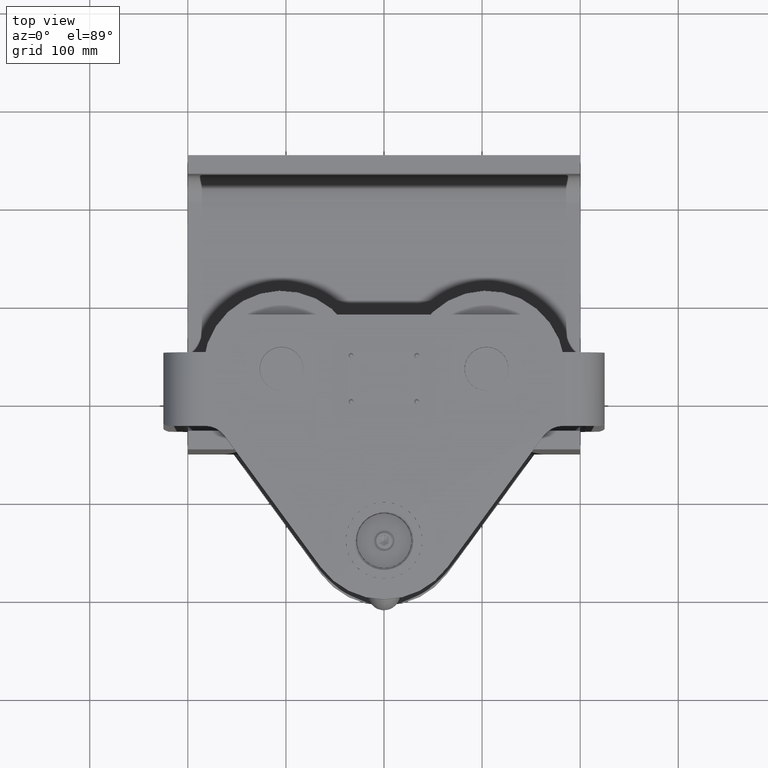
[diagram: clean part render]
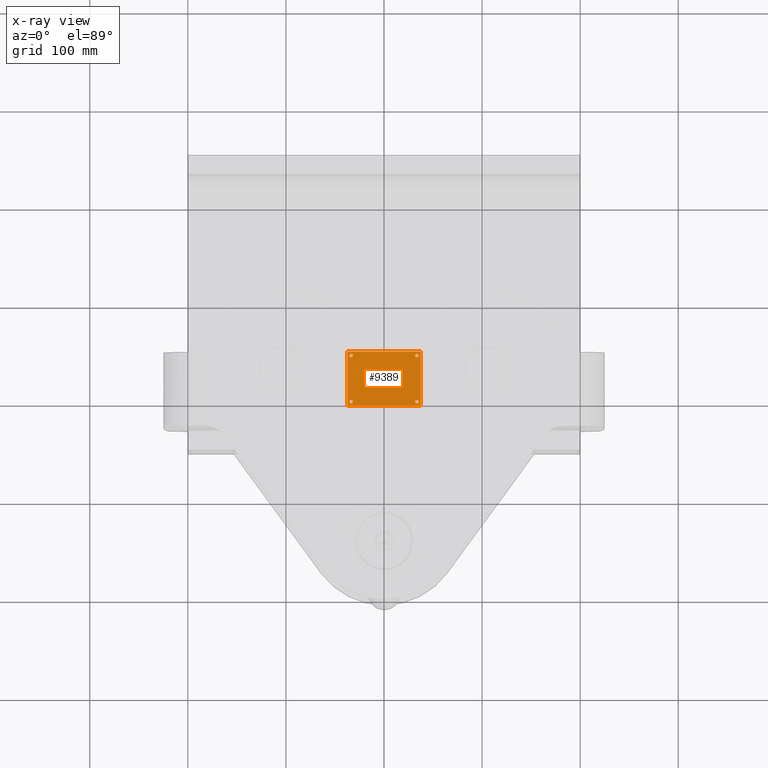
[diagram: x-ray — body ghosted, one internal face saturated and labeled with its STEP entity id]
A machine part, top view, then the same camera in x-ray: the body is ghosted and one INTERNAL B-rep face — a face not visible from any outside direction — is saturated and labeled: STEP entity #9389.
In plain terms, the highlighted planar face has unit normal (0, 0, -1).
Its self-contained STEP definition (entity closure, byte-faithful):
#891 = FACE_BOUND ( 'NONE', #1178, .T. ) ;
#1178 = EDGE_LOOP ( 'NONE', ( #51206, #14675 ) ) ;
#1287 = EDGE_CURVE ( 'NONE', #6962, #25222, #12472, .T. ) ;
#1322 = DIRECTION ( 'NONE',  ( 1.000000000000000000, 0.0000000000000000000, 0.0000000000000000000 ) ) ;
#1678 = CARTESIAN_POINT ( 'NONE',  ( -33.50000000000000700, -101.9999999999999900, 185.0000000000004300 ) ) ;
#1806 = EDGE_LOOP ( 'NONE', ( #3330, #35598 ) ) ;
#1951 = AXIS2_PLACEMENT_3D ( 'NONE', #42239, #26601, #34793 ) ;
#2257 = DIRECTION ( 'NONE',  ( 0.0000000000000000000, 1.000000000000000000, 0.0000000000000000000 ) ) ;
#3330 = ORIENTED_EDGE ( 'NONE', *, *, #8476, .T. ) ;
#3392 = DIRECTION ( 'NONE',  ( 1.000000000000000000, 0.0000000000000000000, 0.0000000000000000000 ) ) ;
#4411 = VERTEX_POINT ( 'NONE', #24875 ) ;
#4970 = DIRECTION ( 'NONE',  ( 1.000000000000000000, 0.0000000000000000000, 0.0000000000000000000 ) ) ;
#5223 = CARTESIAN_POINT ( 'NONE',  ( -33.50000000000000700, -54.99999999999997900, 185.0000000000004300 ) ) ;
#5318 = AXIS2_PLACEMENT_3D ( 'NONE', #36112, #15628, #3392 ) ;
#5394 = DIRECTION ( 'NONE',  ( 0.0000000000000000000, 0.0000000000000000000, 1.000000000000000000 ) ) ;
#5723 = CARTESIAN_POINT ( 'NONE',  ( -37.50000000000001400, -50.99999999999998600, 185.0000000000004300 ) ) ;
#5928 = CARTESIAN_POINT ( 'NONE',  ( -35.25000000000000700, -101.9999999999999900, 185.0000000000004300 ) ) ;
#5986 = CARTESIAN_POINT ( 'NONE',  ( -33.50000000000000700, -54.99999999999997900, 185.0000000000004300 ) ) ;
#5991 = VECTOR ( 'NONE', #22455, 1000.000000000000000 ) ;
#6962 = VERTEX_POINT ( 'NONE', #10570 ) ;
#7162 = EDGE_CURVE ( 'NONE', #17252, #14737, #28204, .T. ) ;
#7319 = EDGE_CURVE ( 'NONE', #25222, #4411, #30793, .T. ) ;
#7883 = AXIS2_PLACEMENT_3D ( 'NONE', #26074, #21554, #34614 ) ;
#7992 = VERTEX_POINT ( 'NONE', #5928 ) ;
#8169 = CIRCLE ( 'NONE', #1951, 1.749999999999994700 ) ;
#8476 = EDGE_CURVE ( 'NONE', #27762, #45319, #21814, .T. ) ;
#9389 = ADVANCED_FACE ( 'NONE', ( #43199, #891, #18308, #17000, #19564 ), #9815, .T. ) ;
#9494 = CARTESIAN_POINT ( 'NONE',  ( 31.75000000000000000, -101.9999999999999900, 185.0000000000004300 ) ) ;
#9815 = PLANE ( 'NONE',  #51075 ) ;
#10476 = CARTESIAN_POINT ( 'NONE',  ( 37.50000000000000000, -105.9999999999999900, 185.0000000000004300 ) ) ;
#10570 = CARTESIAN_POINT ( 'NONE',  ( 37.50000000000000000, -105.9999999999999900, 185.0000000000004300 ) ) ;
#12472 = LINE ( 'NONE', #10476, #34355 ) ;
#12615 = AXIS2_PLACEMENT_3D ( 'NONE', #5223, #5394, #41940 ) ;
#14451 = DIRECTION ( 'NONE',  ( 0.0000000000000000000, 0.0000000000000000000, 1.000000000000000000 ) ) ;
#14481 = AXIS2_PLACEMENT_3D ( 'NONE', #20836, #17256, #4970 ) ;
#14636 = LINE ( 'NONE', #19039, #37078 ) ;
#14675 = ORIENTED_EDGE ( 'NONE', *, *, #44038, .T. ) ;
#14737 = VERTEX_POINT ( 'NONE', #52064 ) ;
#14955 = ORIENTED_EDGE ( 'NONE', *, *, #50678, .F. ) ;
#14995 = ORIENTED_EDGE ( 'NONE', *, *, #48019, .F. ) ;
#15270 = EDGE_CURVE ( 'NONE', #41197, #30614, #8169, .T. ) ;
#15628 = DIRECTION ( 'NONE',  ( 0.0000000000000000000, 0.0000000000000000000, 1.000000000000000000 ) ) ;
#16196 = CARTESIAN_POINT ( 'NONE',  ( -37.50000000000001400, -105.9999999999999900, 185.0000000000004300 ) ) ;
#17000 = FACE_BOUND ( 'NONE', #17685, .T. ) ;
#17092 = ORIENTED_EDGE ( 'NONE', *, *, #1287, .F. ) ;
#17252 = VERTEX_POINT ( 'NONE', #19679 ) ;
#17256 = DIRECTION ( 'NONE',  ( 0.0000000000000000000, 0.0000000000000000000, 1.000000000000000000 ) ) ;
#17685 = EDGE_LOOP ( 'NONE', ( #24689, #25419 ) ) ;
#17757 = CIRCLE ( 'NONE', #31039, 1.750000000000001600 ) ;
#17912 = EDGE_CURVE ( 'NONE', #14737, #17252, #17757, .T. ) ;
#18308 = FACE_BOUND ( 'NONE', #44047, .T. ) ;
#19039 = CARTESIAN_POINT ( 'NONE',  ( -37.50000000000001400, -105.9999999999999900, 185.0000000000004300 ) ) ;
#19564 = FACE_OUTER_BOUND ( 'NONE', #43472, .T. ) ;
#19611 = CARTESIAN_POINT ( 'NONE',  ( -37.50000000000001400, -50.99999999999998600, 185.0000000000004300 ) ) ;
#19679 = CARTESIAN_POINT ( 'NONE',  ( -31.75000000000000700, -54.99999999999997900, 185.0000000000004300 ) ) ;
#20295 = EDGE_CURVE ( 'NONE', #52379, #7992, #26787, .T. ) ;
#20836 = CARTESIAN_POINT ( 'NONE',  ( 33.49999999999999300, -101.9999999999999900, 185.0000000000004300 ) ) ;
#21284 = CARTESIAN_POINT ( 'NONE',  ( 37.50000000000000000, -50.99999999999998600, 185.0000000000004300 ) ) ;
#21554 = DIRECTION ( 'NONE',  ( 0.0000000000000000000, 0.0000000000000000000, 1.000000000000000000 ) ) ;
#21814 = CIRCLE ( 'NONE', #14481, 1.749999999999994700 ) ;
#22214 = DIRECTION ( 'NONE',  ( 0.0000000000000000000, 0.0000000000000000000, 1.000000000000000000 ) ) ;
#22455 = DIRECTION ( 'NONE',  ( 1.000000000000000000, 0.0000000000000000000, 0.0000000000000000000 ) ) ;
#22787 = VERTEX_POINT ( 'NONE', #16196 ) ;
#23070 = DIRECTION ( 'NONE',  ( -1.000000000000000000, 0.0000000000000000000, -0.0000000000000000000 ) ) ;
#23773 = DIRECTION ( 'NONE',  ( -1.000000000000000000, -0.0000000000000000000, -0.0000000000000000000 ) ) ;
#23913 = DIRECTION ( 'NONE',  ( 0.0000000000000000000, 0.0000000000000000000, 1.000000000000000000 ) ) ;
#24689 = ORIENTED_EDGE ( 'NONE', *, *, #7162, .T. ) ;
#24875 = CARTESIAN_POINT ( 'NONE',  ( -37.50000000000001400, -50.99999999999998600, 185.0000000000004300 ) ) ;
#25155 = CARTESIAN_POINT ( 'NONE',  ( 31.75000000000000000, -54.99999999999997900, 185.0000000000004300 ) ) ;
#25222 = VERTEX_POINT ( 'NONE', #21284 ) ;
#25419 = ORIENTED_EDGE ( 'NONE', *, *, #17912, .T. ) ;
#26074 = CARTESIAN_POINT ( 'NONE',  ( 33.49999999999999300, -101.9999999999999900, 185.0000000000004300 ) ) ;
#26601 = DIRECTION ( 'NONE',  ( 0.0000000000000000000, 0.0000000000000000000, 1.000000000000000000 ) ) ;
#26787 = CIRCLE ( 'NONE', #53250, 1.750000000000001600 ) ;
#27458 = ORIENTED_EDGE ( 'NONE', *, *, #7319, .F. ) ;
#27665 = CARTESIAN_POINT ( 'NONE',  ( 35.24999999999999300, -54.99999999999997900, 185.0000000000004300 ) ) ;
#27762 = VERTEX_POINT ( 'NONE', #28725 ) ;
#28204 = CIRCLE ( 'NONE', #12615, 1.750000000000001600 ) ;
#28725 = CARTESIAN_POINT ( 'NONE',  ( 35.24999999999999300, -101.9999999999999900, 185.0000000000004300 ) ) ;
#30614 = VERTEX_POINT ( 'NONE', #25155 ) ;
#30793 = LINE ( 'NONE', #19611, #51259 ) ;
#30969 = CIRCLE ( 'NONE', #5318, 1.750000000000001600 ) ;
#31039 = AXIS2_PLACEMENT_3D ( 'NONE', #5986, #14451, #51394 ) ;
#32291 = DIRECTION ( 'NONE',  ( 1.000000000000000000, 0.0000000000000000000, 0.0000000000000000000 ) ) ;
#32826 = EDGE_CURVE ( 'NONE', #30614, #41197, #33751, .T. ) ;
#33751 = CIRCLE ( 'NONE', #47421, 1.749999999999994700 ) ;
#33785 = ORIENTED_EDGE ( 'NONE', *, *, #32826, .T. ) ;
#34355 = VECTOR ( 'NONE', #2257, 1000.000000000000000 ) ;
#34614 = DIRECTION ( 'NONE',  ( 1.000000000000000000, 0.0000000000000000000, 0.0000000000000000000 ) ) ;
#34793 = DIRECTION ( 'NONE',  ( 1.000000000000000000, 0.0000000000000000000, 0.0000000000000000000 ) ) ;
#35151 = DIRECTION ( 'NONE',  ( -0.0000000000000000000, -1.000000000000000000, -0.0000000000000000000 ) ) ;
#35598 = ORIENTED_EDGE ( 'NONE', *, *, #46895, .T. ) ;
#36112 = CARTESIAN_POINT ( 'NONE',  ( -33.50000000000000700, -101.9999999999999900, 185.0000000000004300 ) ) ;
#37078 = VECTOR ( 'NONE', #35151, 1000.000000000000000 ) ;
#41197 = VERTEX_POINT ( 'NONE', #27665 ) ;
#41756 = CARTESIAN_POINT ( 'NONE',  ( -31.75000000000000700, -101.9999999999999900, 185.0000000000004300 ) ) ;
#41940 = DIRECTION ( 'NONE',  ( 1.000000000000000000, 0.0000000000000000000, 0.0000000000000000000 ) ) ;
#42239 = CARTESIAN_POINT ( 'NONE',  ( 33.49999999999999300, -54.99999999999997900, 185.0000000000004300 ) ) ;
#42367 = CARTESIAN_POINT ( 'NONE',  ( -37.50000000000001400, -105.9999999999999900, 185.0000000000004300 ) ) ;
#42819 = DIRECTION ( 'NONE',  ( 0.0000000000000000000, 0.0000000000000000000, -1.000000000000000000 ) ) ;
#43199 = FACE_BOUND ( 'NONE', #1806, .T. ) ;
#43472 = EDGE_LOOP ( 'NONE', ( #14955, #27458, #17092, #14995 ) ) ;
#44038 = EDGE_CURVE ( 'NONE', #7992, #52379, #30969, .T. ) ;
#44047 = EDGE_LOOP ( 'NONE', ( #52988, #33785 ) ) ;
#44236 = CARTESIAN_POINT ( 'NONE',  ( 33.49999999999999300, -54.99999999999997900, 185.0000000000004300 ) ) ;
#45319 = VERTEX_POINT ( 'NONE', #9494 ) ;
#46702 = CIRCLE ( 'NONE', #7883, 1.749999999999994700 ) ;
#46895 = EDGE_CURVE ( 'NONE', #45319, #27762, #46702, .T. ) ;
#47421 = AXIS2_PLACEMENT_3D ( 'NONE', #44236, #23913, #32291 ) ;
#48019 = EDGE_CURVE ( 'NONE', #22787, #6962, #50298, .T. ) ;
#50298 = LINE ( 'NONE', #42367, #5991 ) ;
#50678 = EDGE_CURVE ( 'NONE', #4411, #22787, #14636, .T. ) ;
#51075 = AXIS2_PLACEMENT_3D ( 'NONE', #5723, #42819, #23070 ) ;
#51206 = ORIENTED_EDGE ( 'NONE', *, *, #20295, .T. ) ;
#51259 = VECTOR ( 'NONE', #23773, 1000.000000000000000 ) ;
#51394 = DIRECTION ( 'NONE',  ( 1.000000000000000000, 0.0000000000000000000, 0.0000000000000000000 ) ) ;
#52064 = CARTESIAN_POINT ( 'NONE',  ( -35.25000000000000700, -54.99999999999997900, 185.0000000000004300 ) ) ;
#52379 = VERTEX_POINT ( 'NONE', #41756 ) ;
#52988 = ORIENTED_EDGE ( 'NONE', *, *, #15270, .T. ) ;
#53250 = AXIS2_PLACEMENT_3D ( 'NONE', #1678, #22214, #1322 ) ;